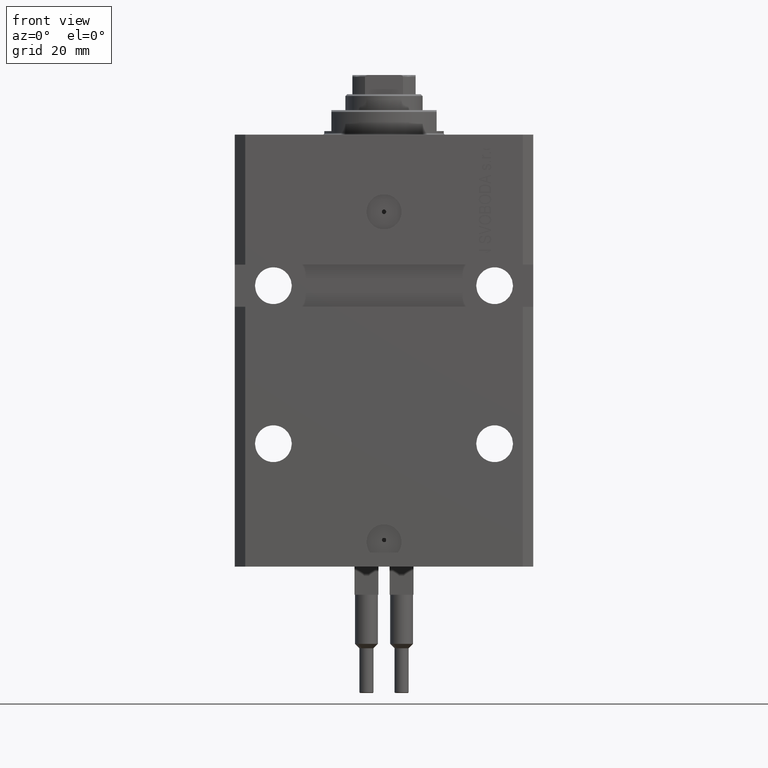
[diagram: clean part render]
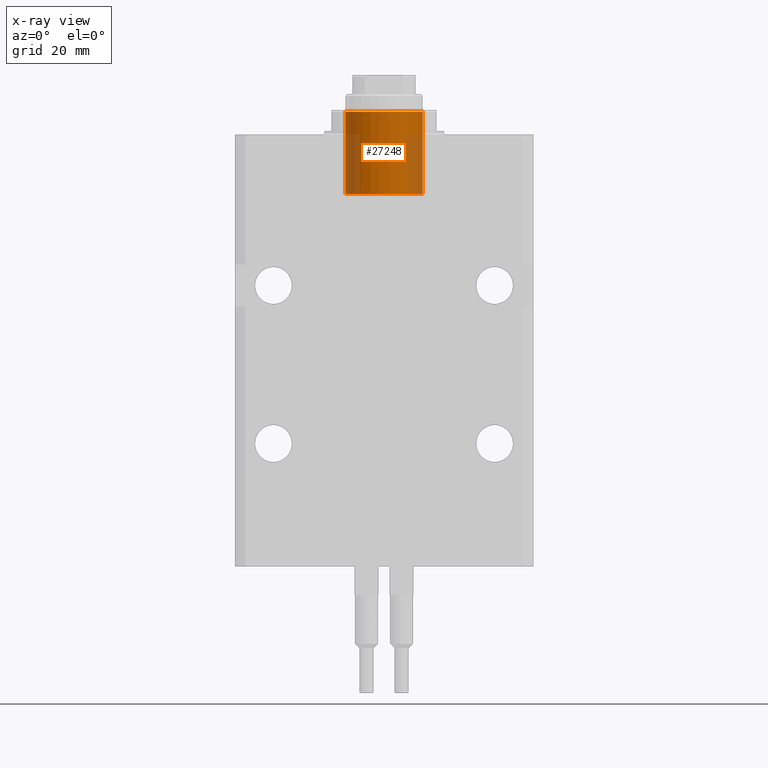
[diagram: x-ray — body ghosted, one internal face saturated and labeled with its STEP entity id]
A machine part, front view, then the same camera in x-ray: the body is ghosted and one INTERNAL B-rep face — a face not visible from any outside direction — is saturated and labeled: STEP entity #27248.
In plain terms, the highlighted cylindrical surface (partial cylindrical patch) has radius 11 mm, axis along (0, -0, 1).
Its self-contained STEP definition (entity closure, byte-faithful):
#382 = VECTOR ( 'NONE', #30317, 1000.000000000000000 ) ;
#1771 = DIRECTION ( 'NONE',  ( 0.000000000000000000, 0.000000000000000000, -1.000000000000000000 ) ) ;
#2896 = DIRECTION ( 'NONE',  ( -1.000000000000000000, 0.000000000000000000, 0.000000000000000000 ) ) ;
#3139 = CARTESIAN_POINT ( 'NONE',  ( -11.00000000000000000, 0.000000000000000000, 17.00000000000000000 ) ) ;
#5915 = CYLINDRICAL_SURFACE ( 'NONE', #38663, 11.00000000000000000 ) ;
#6163 = CARTESIAN_POINT ( 'NONE',  ( 0.000000000000000000, 0.000000000000000000, 17.00000000000000000 ) ) ;
#6188 = ORIENTED_EDGE ( 'NONE', *, *, #17846, .T. ) ;
#6266 = ORIENTED_EDGE ( 'NONE', *, *, #32595, .F. ) ;
#7494 = CARTESIAN_POINT ( 'NONE',  ( -11.00000000000000000, 0.000000000000000000, -6.499999999999992006 ) ) ;
#9284 = DIRECTION ( 'NONE',  ( -1.000000000000000000, 0.000000000000000000, 0.000000000000000000 ) ) ;
#9549 = LINE ( 'NONE', #17782, #14728 ) ;
#14728 = VECTOR ( 'NONE', #32777, 1000.000000000000000 ) ;
#14758 = ORIENTED_EDGE ( 'NONE', *, *, #16562, .F. ) ;
#15081 = CARTESIAN_POINT ( 'NONE',  ( -11.00000000000000000, 0.000000000000000000, 17.00000000000000000 ) ) ;
#15187 = CARTESIAN_POINT ( 'NONE',  ( 11.00000000000000000, 1.347111479062088405E-15, 17.00000000000000000 ) ) ;
#16562 = EDGE_CURVE ( 'NONE', #35666, #20440, #23184, .T. ) ;
#17659 = AXIS2_PLACEMENT_3D ( 'NONE', #38436, #19437, #45703 ) ;
#17782 = CARTESIAN_POINT ( 'NONE',  ( 11.00000000000000000, 1.347111479062088405E-15, 17.00000000000000000 ) ) ;
#17846 = EDGE_CURVE ( 'NONE', #47469, #46317, #39994, .T. ) ;
#19437 = DIRECTION ( 'NONE',  ( 0.000000000000000000, 0.000000000000000000, -1.000000000000000000 ) ) ;
#20440 = VERTEX_POINT ( 'NONE', #3139 ) ;
#22922 = CARTESIAN_POINT ( 'NONE',  ( 11.00000000000000000, 1.347111479062088405E-15, -6.499999999999992006 ) ) ;
#23182 = ORIENTED_EDGE ( 'NONE', *, *, #28534, .T. ) ;
#23184 = CIRCLE ( 'NONE', #43964, 11.00000000000000000 ) ;
#25169 = FACE_OUTER_BOUND ( 'NONE', #39220, .T. ) ;
#27058 = LINE ( 'NONE', #15081, #382 ) ;
#27248 = ADVANCED_FACE ( 'NONE', ( #25169 ), #5915, .F. ) ;
#28534 = EDGE_CURVE ( 'NONE', #35666, #47469, #9549, .T. ) ;
#30317 = DIRECTION ( 'NONE',  ( -0.000000000000000000, -0.000000000000000000, -1.000000000000000000 ) ) ;
#32595 = EDGE_CURVE ( 'NONE', #20440, #46317, #27058, .T. ) ;
#32777 = DIRECTION ( 'NONE',  ( -0.000000000000000000, -0.000000000000000000, -1.000000000000000000 ) ) ;
#35666 = VERTEX_POINT ( 'NONE', #15187 ) ;
#38436 = CARTESIAN_POINT ( 'NONE',  ( 0.000000000000000000, 0.000000000000000000, -6.499999999999992006 ) ) ;
#38663 = AXIS2_PLACEMENT_3D ( 'NONE', #6163, #44169, #2896 ) ;
#39220 = EDGE_LOOP ( 'NONE', ( #14758, #23182, #6188, #6266 ) ) ;
#39994 = CIRCLE ( 'NONE', #17659, 11.00000000000000000 ) ;
#43526 = CARTESIAN_POINT ( 'NONE',  ( 0.000000000000000000, 0.000000000000000000, 17.00000000000000000 ) ) ;
#43964 = AXIS2_PLACEMENT_3D ( 'NONE', #43526, #1771, #9284 ) ;
#44169 = DIRECTION ( 'NONE',  ( -0.000000000000000000, -0.000000000000000000, -1.000000000000000000 ) ) ;
#45703 = DIRECTION ( 'NONE',  ( -1.000000000000000000, 0.000000000000000000, 0.000000000000000000 ) ) ;
#46317 = VERTEX_POINT ( 'NONE', #7494 ) ;
#47469 = VERTEX_POINT ( 'NONE', #22922 ) ;